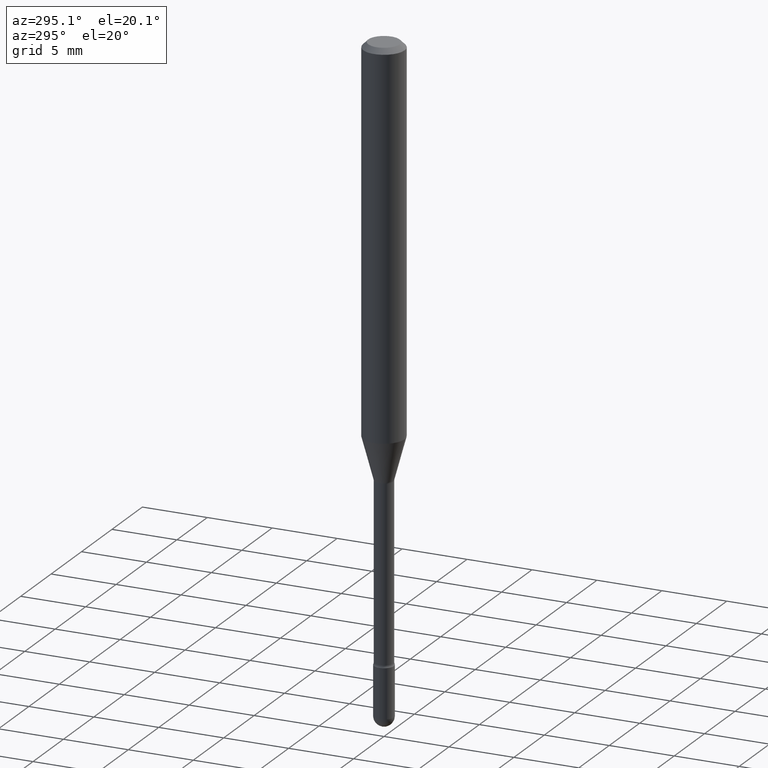
[diagram: clean part render]
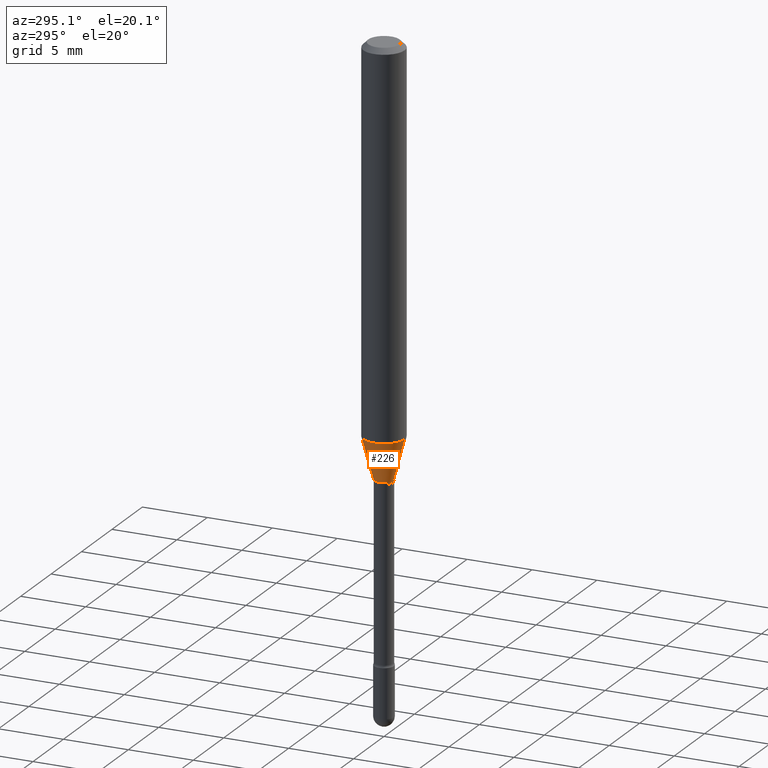
[diagram: same view with one face highlighted and labeled with its STEP entity id]
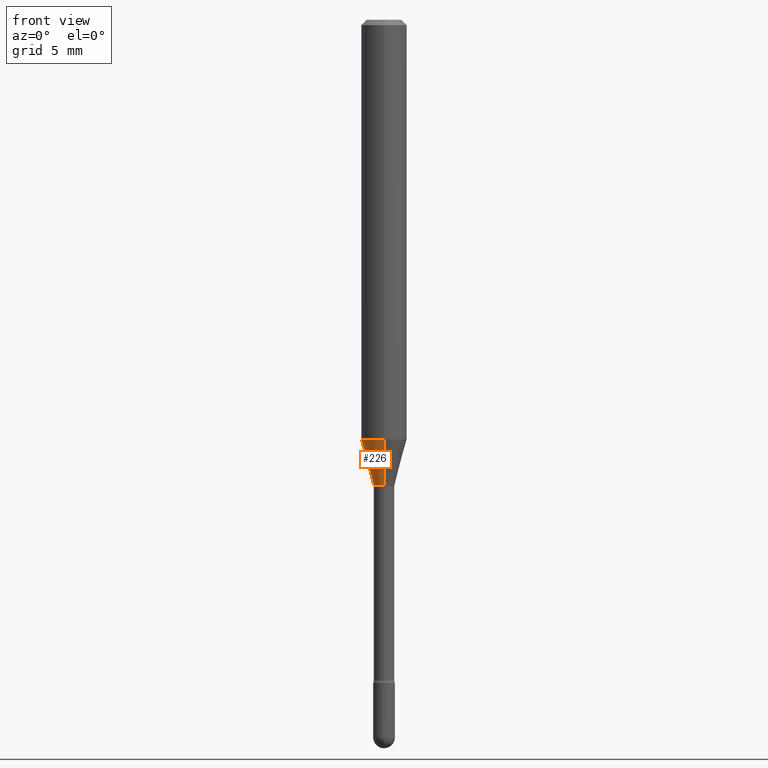
[diagram: same view with one face highlighted and labeled with its STEP entity id]
A machine part, auxiliary view. The second image highlights one B-rep face of the part: STEP entity #226.
A second angle (front view) of the same face is appended — the face is thin or edge-on in the first view.
In plain terms, the highlighted conical surface has half-angle 15 deg.
Its self-contained STEP definition (entity closure, byte-faithful):
#19 = DIRECTION ( 'NONE',  ( -1.807323732225328562E-15, -0.2588190451025179639, 0.9659258262890690894 ) ) ;
#24 = DIRECTION ( 'NONE',  ( -2.445457254493661418E-29, 3.491497881522819481E-15, 1.000000000000000000 ) ) ;
#26 = EDGE_CURVE ( 'NONE', #104, #322, #432, .T. ) ;
#50 = CONICAL_SURFACE ( 'NONE', #379, 0.02871111260566397427, 0.2617993877991500740 ) ;
#53 = EDGE_CURVE ( 'NONE', #333, #104, #298, .T. ) ;
#66 = LINE ( 'NONE', #143, #287 ) ;
#104 = VERTEX_POINT ( 'NONE', #129 ) ;
#128 = DIRECTION ( 'NONE',  ( -6.982962677686265922E-15, -1.000000000000000000, 4.370956789862821150E-15 ) ) ;
#129 = CARTESIAN_POINT ( 'NONE',  ( 4.440892098500904235E-16, 0.06249999999999594075, -1.151990657300388188 ) ) ;
#143 = CARTESIAN_POINT ( 'NONE',  ( -2.004886277601679343E-16, -0.02871111260566843598, -1.278092501787273072 ) ) ;
#154 = CARTESIAN_POINT ( 'NONE',  ( 3.125520580409640531E-29, -4.462457262380464341E-15, -1.278092501787273072 ) ) ;
#185 = CARTESIAN_POINT ( 'NONE',  ( -4.364351673553636648E-16, -0.06250000000000405231, -1.151990657300387522 ) ) ;
#226 = ADVANCED_FACE ( 'NONE', ( #463 ), #50, .T. ) ;
#237 = CARTESIAN_POINT ( 'NONE',  ( -2.004886277601679343E-16, -0.02871111260566843598, -1.278092501787273072 ) ) ;
#238 = ORIENTED_EDGE ( 'NONE', *, *, #26, .F. ) ;
#246 = ORIENTED_EDGE ( 'NONE', *, *, #53, .F. ) ;
#251 = DIRECTION ( 'NONE',  ( 1.839019923739598738E-15, 0.2588190451025247363, 0.9659258262890673130 ) ) ;
#257 = ORIENTED_EDGE ( 'NONE', *, *, #348, .T. ) ;
#258 = AXIS2_PLACEMENT_3D ( 'NONE', #431, #427, #128 ) ;
#269 = EDGE_CURVE ( 'NONE', #333, #325, #315, .T. ) ;
#276 = DIRECTION ( 'NONE',  ( -2.445457254493661418E-29, 3.491497881522819481E-15, 1.000000000000000000 ) ) ;
#281 = DIRECTION ( 'NONE',  ( -6.982962677686265922E-15, -1.000000000000000000, 0.000000000000000000 ) ) ;
#287 = VECTOR ( 'NONE', #19, 39.37007874015748854 ) ;
#298 = LINE ( 'NONE', #525, #341 ) ;
#315 = CIRCLE ( 'NONE', #352, 0.02871111260566397427 ) ;
#322 = VERTEX_POINT ( 'NONE', #185 ) ;
#325 = VERTEX_POINT ( 'NONE', #237 ) ;
#328 = DIRECTION ( 'NONE',  ( -6.982962677686265922E-15, -1.000000000000000000, 0.000000000000000000 ) ) ;
#330 = CARTESIAN_POINT ( 'NONE',  ( 3.125520580409640531E-29, -4.462457262380464341E-15, -1.278092501787273072 ) ) ;
#333 = VERTEX_POINT ( 'NONE', #540 ) ;
#341 = VECTOR ( 'NONE', #251, 39.37007874015748854 ) ;
#348 = EDGE_CURVE ( 'NONE', #325, #322, #66, .T. ) ;
#352 = AXIS2_PLACEMENT_3D ( 'NONE', #154, #276, #328 ) ;
#379 = AXIS2_PLACEMENT_3D ( 'NONE', #330, #24, #281 ) ;
#427 = DIRECTION ( 'NONE',  ( -2.445457254493661418E-29, 3.491497881522819481E-15, 1.000000000000000000 ) ) ;
#431 = CARTESIAN_POINT ( 'NONE',  ( 2.817143910004154640E-29, -4.022172939498384553E-15, -1.151990657300387744 ) ) ;
#432 = CIRCLE ( 'NONE', #258, 0.06250000000000000000 ) ;
#463 = FACE_OUTER_BOUND ( 'NONE', #552, .T. ) ;
#525 = CARTESIAN_POINT ( 'NONE',  ( 2.040047249754790466E-16, 0.02871111260565951603, -1.278092501787273072 ) ) ;
#540 = CARTESIAN_POINT ( 'NONE',  ( 3.240469674127849323E-16, 0.02871111260565951603, -1.278092501787273072 ) ) ;
#550 = ORIENTED_EDGE ( 'NONE', *, *, #269, .T. ) ;
#552 = EDGE_LOOP ( 'NONE', ( #246, #550, #257, #238 ) ) ;